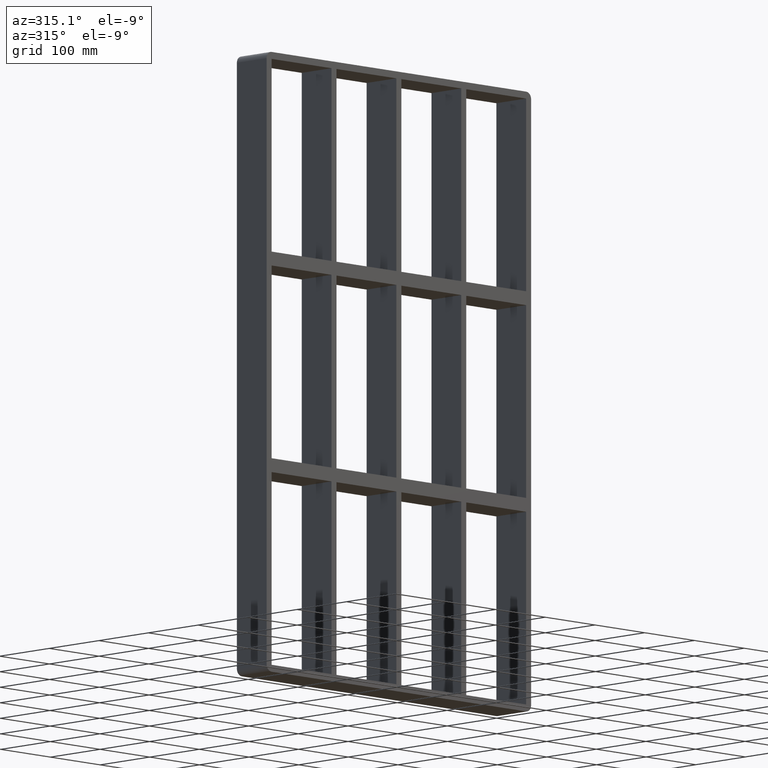
[diagram: clean part render]
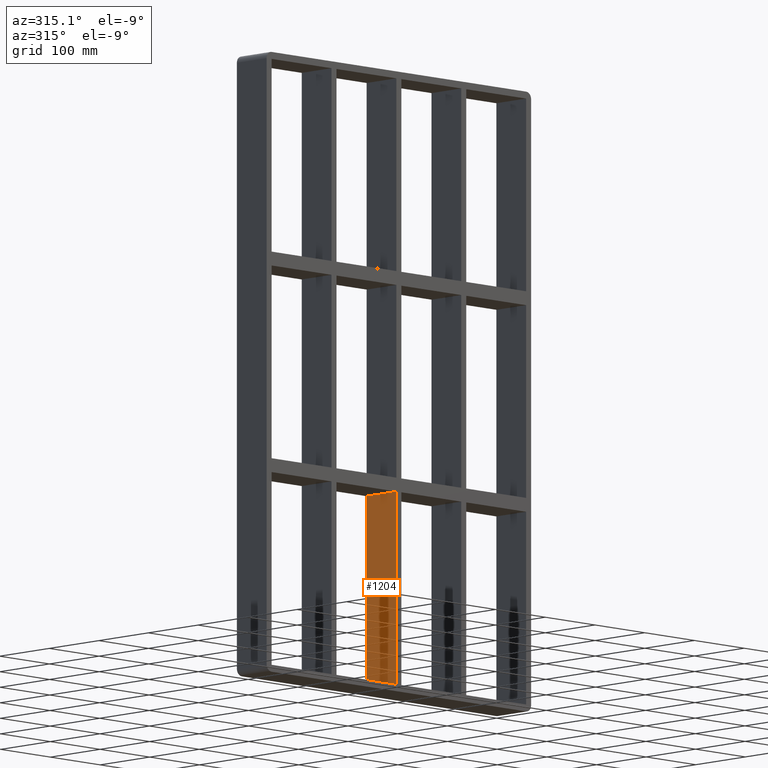
[diagram: same view with one face highlighted and labeled with its STEP entity id]
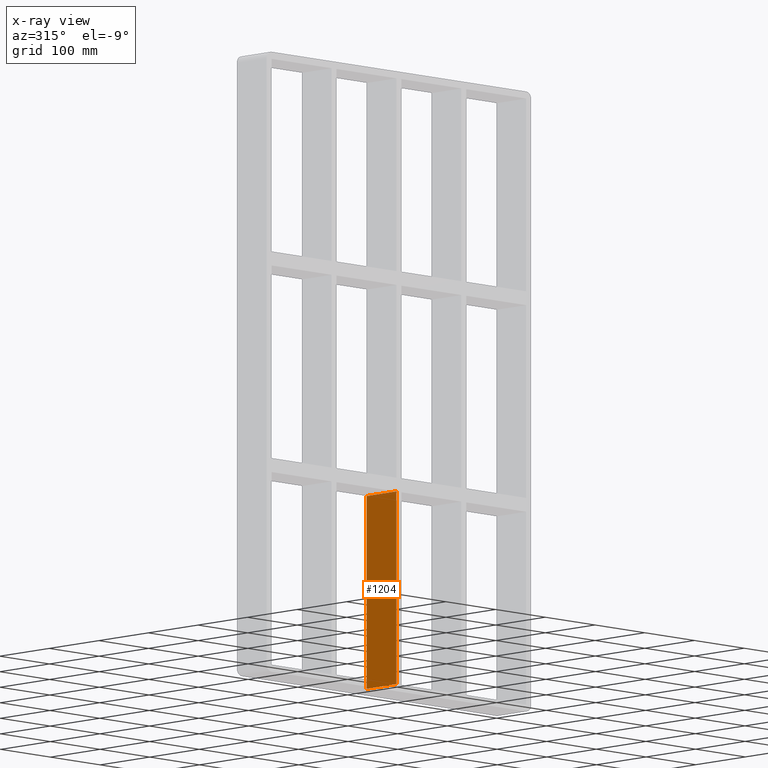
[diagram: x-ray of the same camera — body ghosted, the highlighted face saturated]
A machine part, auxiliary view. The second image highlights one B-rep face of the part: STEP entity #1204.
The next image is the same camera in x-ray: the body ghosted, the highlighted face saturated — about 0% of this face is hidden behind the body in this view.
In plain terms, the highlighted planar face has unit normal (-1, 0, 0).
Its self-contained STEP definition (entity closure, byte-faithful):
#926=CARTESIAN_POINT('',(-5.000000000001315,57.0,-437.0));
#927=VERTEX_POINT('',#926);
#928=CARTESIAN_POINT('',(-5.000000000001342,57.0,-159.00000000000941));
#929=VERTEX_POINT('',#928);
#930=CARTESIAN_POINT('',(-5.000000000001315,57.0,-437.0));
#931=DIRECTION('',(0.0,0.0,1.0));
#932=VECTOR('',#931,277.99999999999062);
#933=LINE('',#930,#932);
#934=EDGE_CURVE('',#927,#929,#933,.T.);
#1174=CARTESIAN_POINT('',(-5.000000000001315,-3.0,-437.0));
#1175=DIRECTION('',(-1.0,0.0,0.0));
#1176=DIRECTION('',(0.0,0.0,1.0));
#1177=AXIS2_PLACEMENT_3D('',#1174,#1175,#1176);
#1178=PLANE('',#1177);
#1179=CARTESIAN_POINT('',(-5.000000000001342,-3.0,-159.00000000000941));
#1180=VERTEX_POINT('',#1179);
#1181=CARTESIAN_POINT('',(-5.000000000001347,57.0,-159.00000000000938));
#1182=DIRECTION('',(0.0,-1.0,0.0));
#1183=VECTOR('',#1182,60.0);
#1184=LINE('',#1181,#1183);
#1185=EDGE_CURVE('',#929,#1180,#1184,.T.);
#1186=ORIENTED_EDGE('',*,*,#1185,.F.);
#1187=ORIENTED_EDGE('',*,*,#934,.F.);
#1188=CARTESIAN_POINT('',(-5.000000000001315,-3.0,-437.0));
#1189=VERTEX_POINT('',#1188);
#1190=CARTESIAN_POINT('',(-5.000000000001315,-3.0,-437.0));
#1191=DIRECTION('',(0.0,1.0,0.0));
#1192=VECTOR('',#1191,60.000000000000007);
#1193=LINE('',#1190,#1192);
#1194=EDGE_CURVE('',#1189,#927,#1193,.T.);
#1195=ORIENTED_EDGE('',*,*,#1194,.F.);
#1196=CARTESIAN_POINT('',(-5.000000000001315,-3.0,-437.0));
#1197=DIRECTION('',(0.0,0.0,1.0));
#1198=VECTOR('',#1197,277.99999999999062);
#1199=LINE('',#1196,#1198);
#1200=EDGE_CURVE('',#1189,#1180,#1199,.T.);
#1201=ORIENTED_EDGE('',*,*,#1200,.T.);
#1202=EDGE_LOOP('',(#1186,#1187,#1195,#1201));
#1203=FACE_OUTER_BOUND('',#1202,.T.);
#1204=ADVANCED_FACE('',(#1203),#1178,.T.);